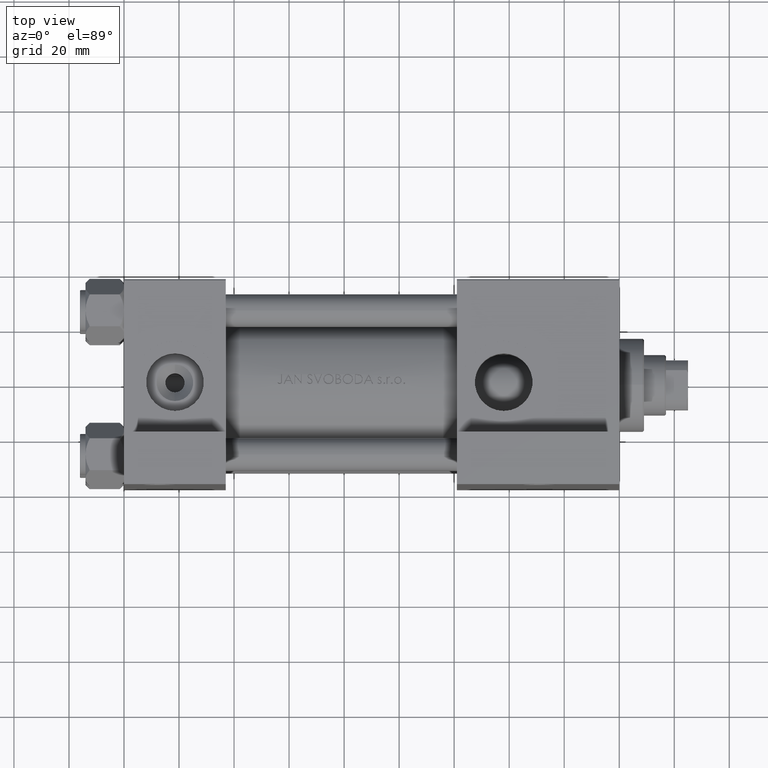
[diagram: clean part render]
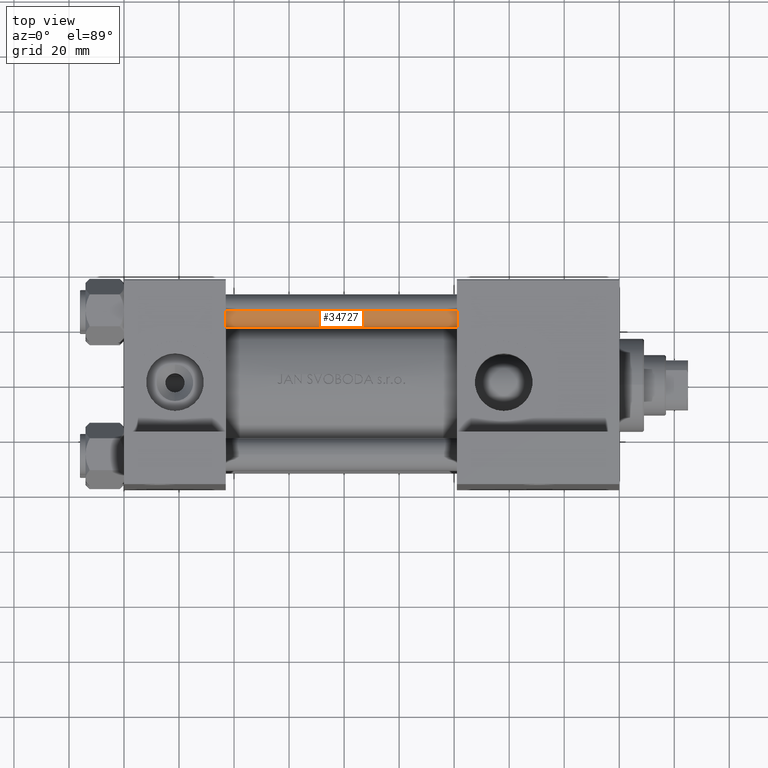
[diagram: same view with one face highlighted and labeled with its STEP entity id]
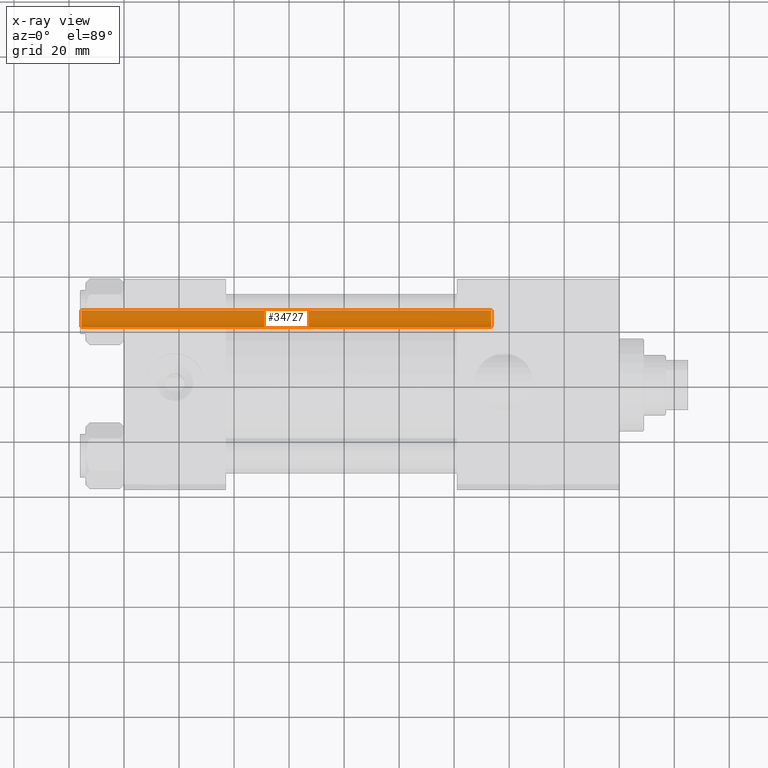
[diagram: x-ray of the same camera — body ghosted, the highlighted face saturated]
A machine part, top view. The second image highlights one B-rep face of the part: STEP entity #34727.
The next image is the same camera in x-ray: the body ghosted, the highlighted face saturated — about 0% of this face is hidden behind the body in this view.
In plain terms, the highlighted cylindrical surface (edge-blend (fillet) strip) has radius 6 mm, axis along (-1, -0, -0).
Its self-contained STEP definition (entity closure, byte-faithful):
#654 = VERTEX_POINT ( 'NONE', #22637 ) ;
#1698 = ORIENTED_EDGE ( 'NONE', *, *, #35956, .T. ) ;
#6071 = CYLINDRICAL_SURFACE ( 'NONE', #9601, 6.000000000000000888 ) ;
#6486 = VECTOR ( 'NONE', #12033, 1000.000000000000000 ) ;
#7490 = CARTESIAN_POINT ( 'NONE',  ( 6.000000000000000888, 7.347880794884120722E-16, 0.5000000000000004441 ) ) ;
#8092 = ORIENTED_EDGE ( 'NONE', *, *, #31929, .T. ) ;
#9601 = AXIS2_PLACEMENT_3D ( 'NONE', #21234, #25225, #17043 ) ;
#9604 = CARTESIAN_POINT ( 'NONE',  ( 0.000000000000000000, 0.000000000000000000, 149.5000000000000000 ) ) ;
#11525 = CARTESIAN_POINT ( 'NONE',  ( -6.000000000000000888, 0.000000000000000000, 0.5000000000000004441 ) ) ;
#12033 = DIRECTION ( 'NONE',  ( -0.000000000000000000, -0.000000000000000000, -1.000000000000000000 ) ) ;
#12045 = CIRCLE ( 'NONE', #46228, 6.000000000000000888 ) ;
#16238 = DIRECTION ( 'NONE',  ( -0.000000000000000000, -0.000000000000000000, 1.000000000000000000 ) ) ;
#16339 = VECTOR ( 'NONE', #48701, 1000.000000000000000 ) ;
#16485 = CIRCLE ( 'NONE', #44296, 6.000000000000000888 ) ;
#17043 = DIRECTION ( 'NONE',  ( -1.000000000000000000, 0.000000000000000000, 0.000000000000000000 ) ) ;
#18311 = LINE ( 'NONE', #33502, #16339 ) ;
#21234 = CARTESIAN_POINT ( 'NONE',  ( 0.000000000000000000, 0.000000000000000000, 150.0000000000000000 ) ) ;
#22453 = CARTESIAN_POINT ( 'NONE',  ( 0.000000000000000000, 0.000000000000000000, 0.5000000000000004441 ) ) ;
#22517 = EDGE_CURVE ( 'NONE', #39468, #45922, #16485, .T. ) ;
#22637 = CARTESIAN_POINT ( 'NONE',  ( -6.000000000000000888, 0.000000000000000000, 149.5000000000000000 ) ) ;
#23717 = CARTESIAN_POINT ( 'NONE',  ( -6.000000000000000888, 0.000000000000000000, 150.0000000000000000 ) ) ;
#23847 = ORIENTED_EDGE ( 'NONE', *, *, #22517, .T. ) ;
#24912 = EDGE_LOOP ( 'NONE', ( #29969, #8092, #1698, #23847 ) ) ;
#25225 = DIRECTION ( 'NONE',  ( -0.000000000000000000, -0.000000000000000000, -1.000000000000000000 ) ) ;
#29969 = ORIENTED_EDGE ( 'NONE', *, *, #48452, .F. ) ;
#30244 = DIRECTION ( 'NONE',  ( 0.000000000000000000, 0.000000000000000000, -1.000000000000000000 ) ) ;
#31929 = EDGE_CURVE ( 'NONE', #36102, #654, #12045, .T. ) ;
#33502 = CARTESIAN_POINT ( 'NONE',  ( 6.000000000000000888, 7.347880794884120722E-16, 150.0000000000000000 ) ) ;
#34727 = ADVANCED_FACE ( 'NONE', ( #40663 ), #6071, .T. ) ;
#35956 = EDGE_CURVE ( 'NONE', #654, #39468, #42139, .T. ) ;
#36102 = VERTEX_POINT ( 'NONE', #48851 ) ;
#36109 = DIRECTION ( 'NONE',  ( 1.000000000000000000, 0.000000000000000000, 0.000000000000000000 ) ) ;
#37719 = DIRECTION ( 'NONE',  ( 1.000000000000000000, 0.000000000000000000, 0.000000000000000000 ) ) ;
#39468 = VERTEX_POINT ( 'NONE', #11525 ) ;
#40663 = FACE_OUTER_BOUND ( 'NONE', #24912, .T. ) ;
#42139 = LINE ( 'NONE', #23717, #6486 ) ;
#44296 = AXIS2_PLACEMENT_3D ( 'NONE', #22453, #16238, #36109 ) ;
#45922 = VERTEX_POINT ( 'NONE', #7490 ) ;
#46228 = AXIS2_PLACEMENT_3D ( 'NONE', #9604, #30244, #37719 ) ;
#48452 = EDGE_CURVE ( 'NONE', #36102, #45922, #18311, .T. ) ;
#48701 = DIRECTION ( 'NONE',  ( -0.000000000000000000, -0.000000000000000000, -1.000000000000000000 ) ) ;
#48851 = CARTESIAN_POINT ( 'NONE',  ( 6.000000000000000888, 7.347880794884120722E-16, 149.5000000000000000 ) ) ;